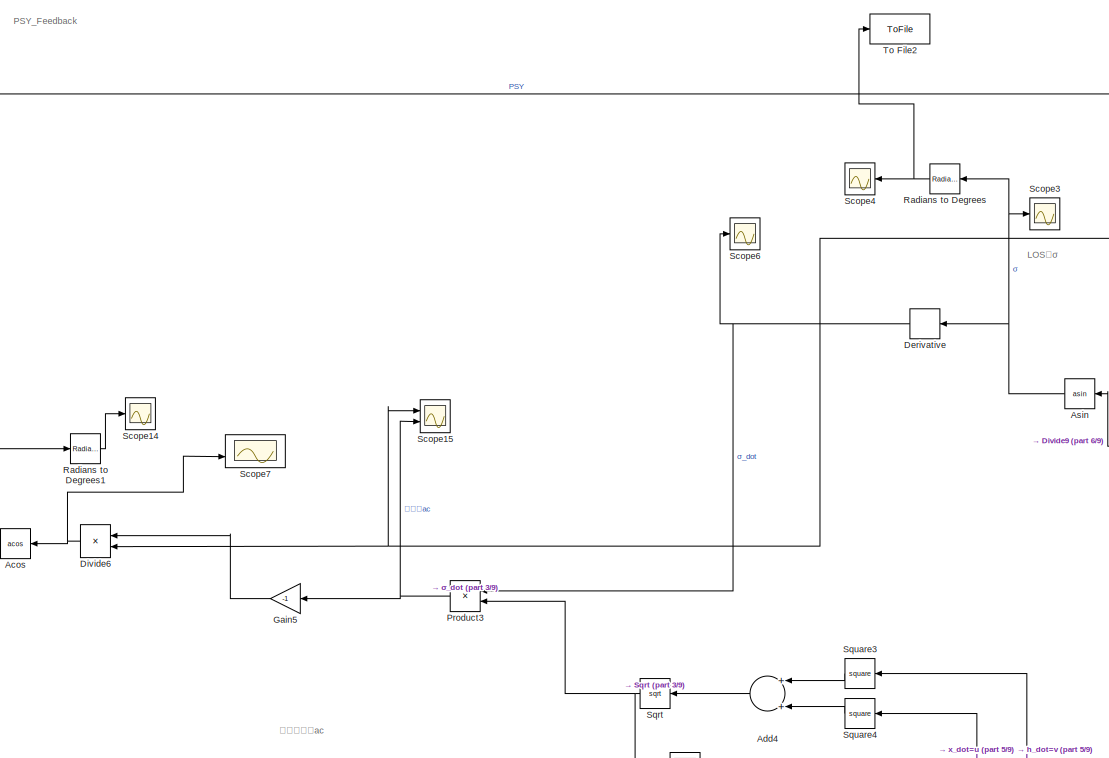
[diagram: root canvas - part 1/9, top left region]
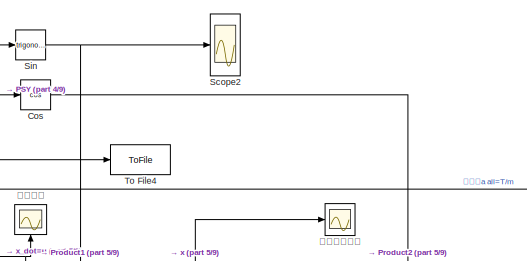
[diagram: root canvas - part 2/9, top center region]
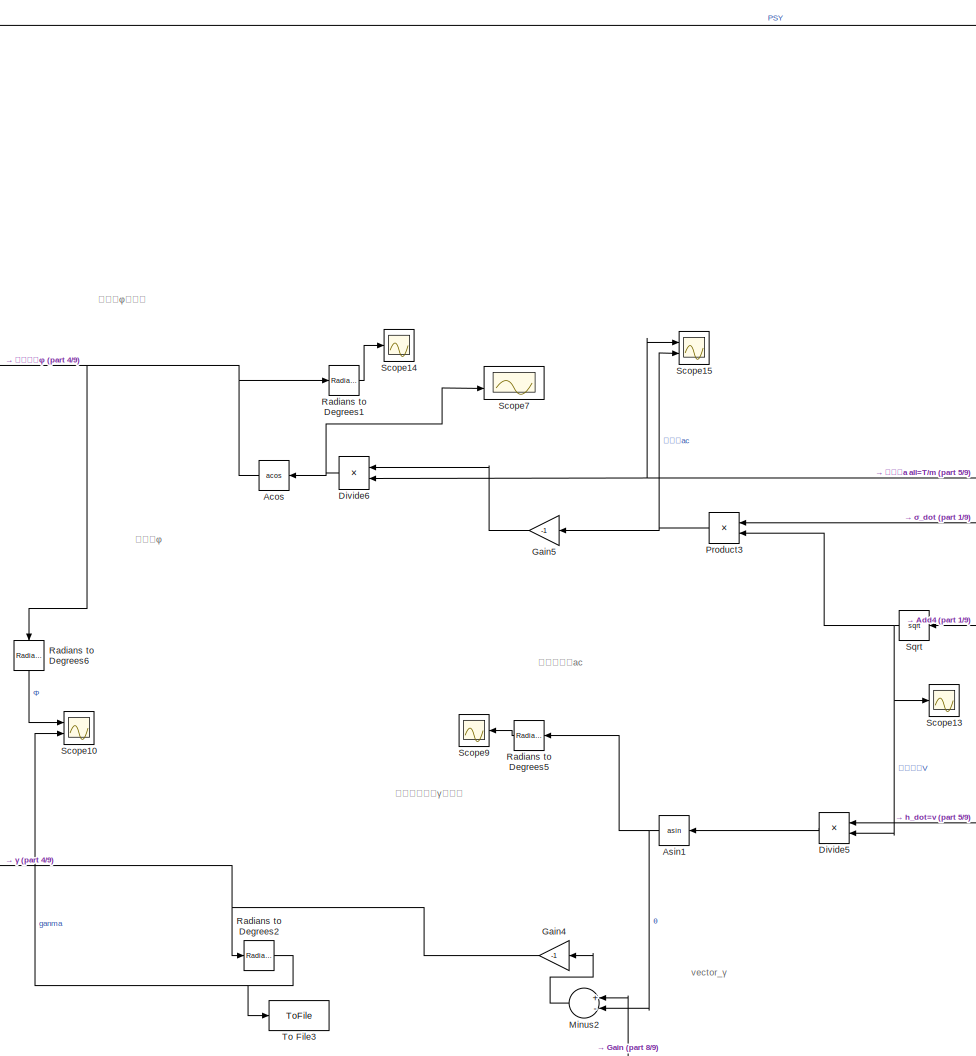
[diagram: root canvas - part 3/9, left side, full height]
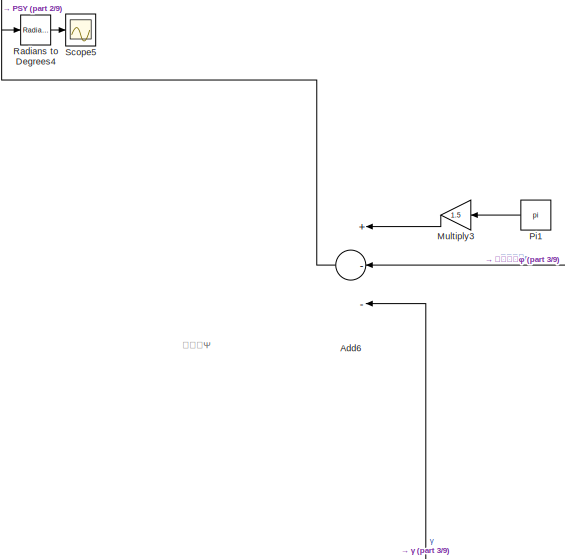
[diagram: root canvas - part 4/9, top left region]
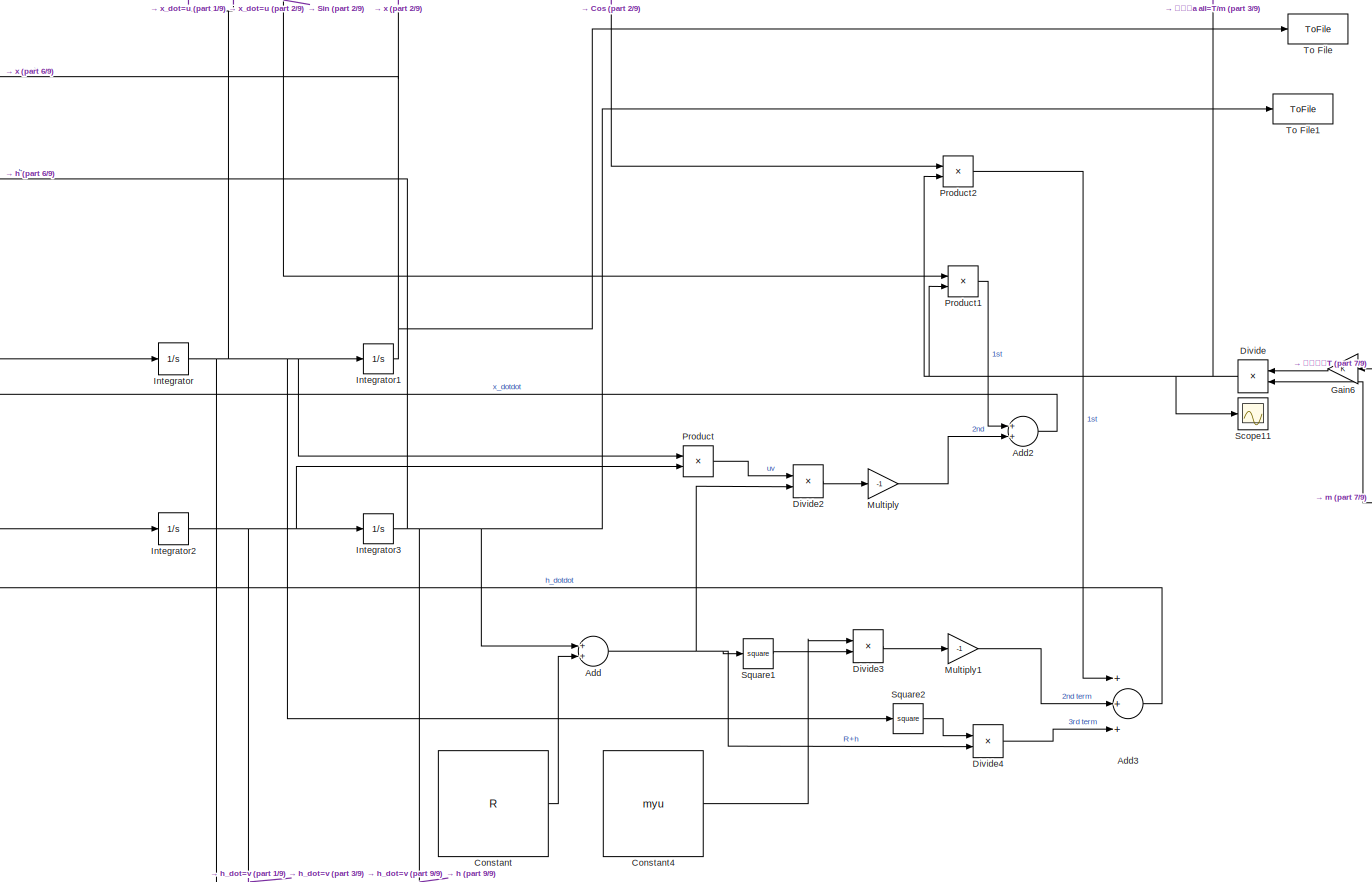
[diagram: root canvas - part 5/9, middle right region]
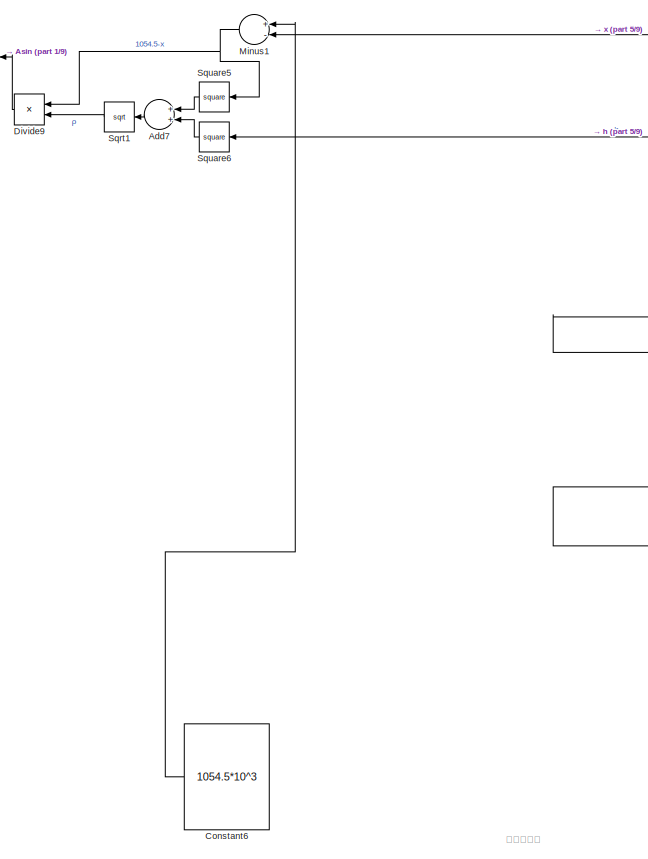
[diagram: root canvas - part 6/9, central region]
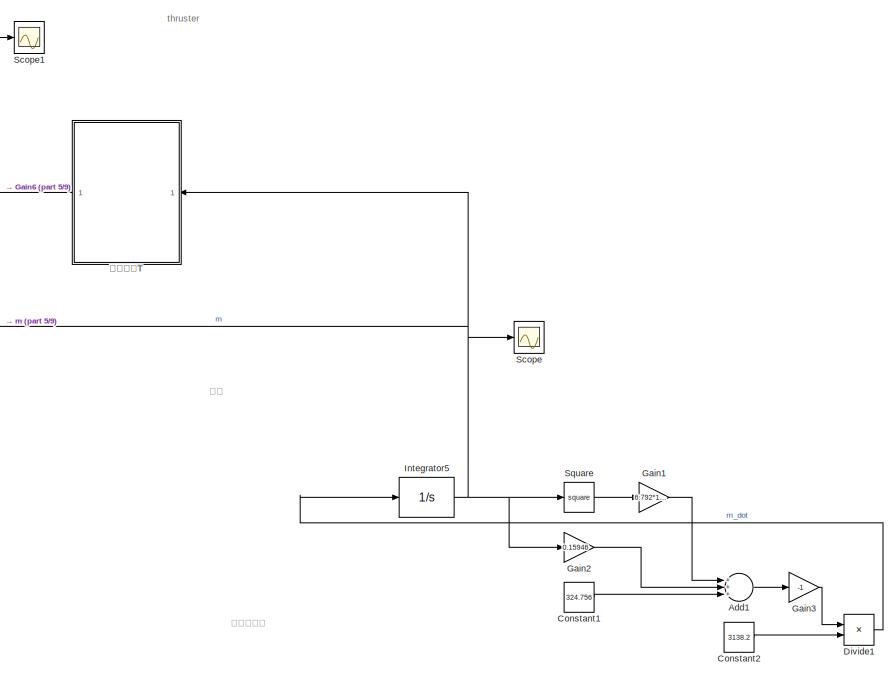
[diagram: root canvas - part 7/9, middle right region]
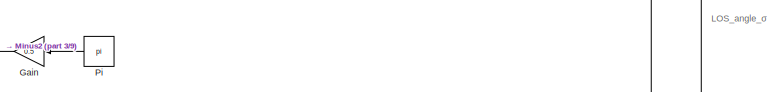
[diagram: root canvas - part 8/9, bottom left region]
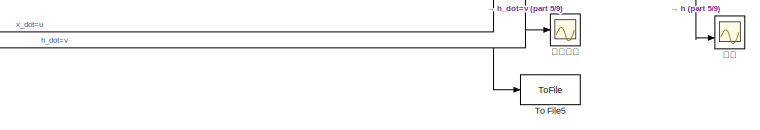
[diagram: root canvas - part 9/9, bottom center region]
MODEL slx_667189627e14
KIND model
CONFIG AbsTol = auto
CONFIG EnableMultiTasking = off
CONFIG FixedStep = auto
CONFIG MaxStep = auto
CONFIG MinStep = auto
CONFIG RelTol = 1e-3
CONFIG SampleTimeConstraint = Unconstrained
CONFIG Solver = VariableStepAuto
CONFIG SolverName = VariableStepAuto
CONFIG StartTime = 0.0
CONFIG StopTime = 150
WORKSPACE source: mxarray member
WORKSPACE R = 1738000
WORKSPACE myu = 4903000000000
BLOCK [Trigonometry] Acos
  Operator = acos
  Ports = [1, 1]
BLOCK [Sum] Add
  InputSameDT = off
  OutDataTypeStr = Inherit: Inherit via internal rule
  Ports = [2, 1]
  SaturateOnIntegerOverflow = off
BLOCK [Sum] Add1
  InputSameDT = off
  Inputs = +++
  OutDataTypeStr = Inherit: Inherit via internal rule
  Ports = [3, 1]
  SaturateOnIntegerOverflow = off
BLOCK [Sum] Add2
  InputSameDT = off
  OutDataTypeStr = Inherit: Inherit via internal rule
  Ports = [2, 1]
  SaturateOnIntegerOverflow = off
BLOCK [Sum] Add3
  InputSameDT = off
  Inputs = +++
  OutDataTypeStr = Inherit: Inherit via internal rule
  Ports = [3, 1]
  SaturateOnIntegerOverflow = off
BLOCK [Sum] Add4
  InputSameDT = off
  OutDataTypeStr = Inherit: Inherit via internal rule
  Ports = [2, 1]
  SaturateOnIntegerOverflow = off
BLOCK [Sum] Add6
  InputSameDT = off
  Inputs = +--
  OutDataTypeStr = Inherit: Inherit via internal rule
  Ports = [3, 1]
  SaturateOnIntegerOverflow = off
BLOCK [Sum] Add7
  InputSameDT = off
  OutDataTypeStr = Inherit: Inherit via internal rule
  Ports = [2, 1]
  SaturateOnIntegerOverflow = off
BLOCK [Trigonometry] Asin
  Operator = asin
  Ports = [1, 1]
BLOCK [Trigonometry] Asin1
  Operator = asin
  Ports = [1, 1]
BLOCK [Constant] Constant
  Value = R
BLOCK [Constant] Constant1
  Value = 324.756
BLOCK [Constant] Constant2
  Value = 3138.2
BLOCK [Constant] Constant4
  Value = myu
BLOCK [Constant] Constant6
  Value = 1054.5*10^3
BLOCK [Trigonometry] Cos
  Operator = cos
  Ports = [1, 1]
BLOCK [Derivative] Derivative
  CoefficientInTFapproximation = 1
BLOCK [Product] Divide
  InputSameDT = off
  Inputs = */
  OutDataTypeStr = Inherit: Inherit via internal rule
  Ports = [2, 1]
BLOCK [Product] Divide1
  InputSameDT = off
  Inputs = */
  OutDataTypeStr = Inherit: Inherit via internal rule
  Ports = [2, 1]
  RndMeth = Floor
  SaturateOnIntegerOverflow = off
BLOCK [Product] Divide2
  InputSameDT = off
  Inputs = */
  OutDataTypeStr = Inherit: Inherit via internal rule
  Ports = [2, 1]
BLOCK [Product] Divide3
  InputSameDT = off
  Inputs = */
  OutDataTypeStr = Inherit: Inherit via internal rule
  Ports = [2, 1]
BLOCK [Product] Divide4
  InputSameDT = off
  Inputs = */
  OutDataTypeStr = Inherit: Inherit via internal rule
  Ports = [2, 1]
BLOCK [Product] Divide5
  InputSameDT = off
  Inputs = */
  OutDataTypeStr = Inherit: Inherit via internal rule
  Ports = [2, 1]
  RndMeth = Floor
  SaturateOnIntegerOverflow = off
BLOCK [Product] Divide6
  InputSameDT = off
  Inputs = */
  OutDataTypeStr = Inherit: Inherit via internal rule
  Ports = [2, 1]
BLOCK [Product] Divide9
  InputSameDT = off
  Inputs = */
  OutDataTypeStr = Inherit: Inherit via internal rule
  Ports = [2, 1]
  RndMeth = Floor
  SaturateOnIntegerOverflow = off
BLOCK [Gain] Gain
  Gain = 0.5
  OutDataTypeStr = Inherit: Inherit via internal rule
  ParamDataTypeStr = Inherit: Inherit via internal rule
  SaturateOnIntegerOverflow = off
BLOCK [Gain] Gain1
  Gain = 6.792*10^-4
  OutDataTypeStr = Inherit: Inherit via internal rule
  ParamDataTypeStr = Inherit: Inherit via internal rule
  SaturateOnIntegerOverflow = off
BLOCK [Gain] Gain2
  Gain = 0.15946
  OutDataTypeStr = Inherit: Inherit via internal rule
  ParamDataTypeStr = Inherit: Inherit via internal rule
  SaturateOnIntegerOverflow = off
BLOCK [Gain] Gain3
  Gain = -1
  OutDataTypeStr = Inherit: Inherit via internal rule
  ParamDataTypeStr = Inherit: Inherit via internal rule
  SaturateOnIntegerOverflow = off
BLOCK [Gain] Gain4
  Gain = -1
  OutDataTypeStr = Inherit: Inherit via internal rule
  ParamDataTypeStr = Inherit: Inherit via internal rule
  SaturateOnIntegerOverflow = off
BLOCK [Gain] Gain5
  Gain = -1
  OutDataTypeStr = Inherit: Inherit via internal rule
  ParamDataTypeStr = Inherit: Inherit via internal rule
  SaturateOnIntegerOverflow = off
BLOCK [Gain] Gain6
  OutDataTypeStr = Inherit: Inherit via internal rule
  ParamDataTypeStr = Inherit: Inherit via internal rule
  SaturateOnIntegerOverflow = off
BLOCK [Integrator] Integrator
  InitialCondition = 170
  Ports = [1, 1]
BLOCK [Integrator] Integrator1
  InitialCondition = 1040.7*10^3
  Ports = [1, 1]
BLOCK [Integrator] Integrator2
  InitialCondition = 3
  Ports = [1, 1]
BLOCK [Integrator] Integrator3
  InitialCondition = 0.5*10^3
  Ports = [1, 1]
BLOCK [Integrator] Integrator5
  InitialCondition = 165.33
  Ports = [1, 1]
BLOCK [Sum] Minus1
  InputSameDT = off
  Inputs = +-
  OutDataTypeStr = Inherit: Inherit via internal rule
  Ports = [2, 1]
  SaturateOnIntegerOverflow = off
BLOCK [Sum] Minus2
  InputSameDT = off
  Inputs = +-
  OutDataTypeStr = Inherit: Inherit via internal rule
  Ports = [2, 1]
  SaturateOnIntegerOverflow = off
BLOCK [Gain] Multiply
  Gain = -1
  OutDataTypeStr = Inherit: Inherit via internal rule
  ParamDataTypeStr = Inherit: Inherit via internal rule
  SaturateOnIntegerOverflow = off
BLOCK [Gain] Multiply1
  Gain = -1
  OutDataTypeStr = Inherit: Inherit via internal rule
  ParamDataTypeStr = Inherit: Inherit via internal rule
  SaturateOnIntegerOverflow = off
BLOCK [Gain] Multiply3
  Gain = 1.5
  OutDataTypeStr = Inherit: Inherit via internal rule
  ParamDataTypeStr = Inherit: Inherit via internal rule
  SaturateOnIntegerOverflow = off
BLOCK [Constant] Pi
  OutDataTypeStr = Inherit: Inherit via back propagation
  Value = pi
BLOCK [Constant] Pi1
  OutDataTypeStr = Inherit: Inherit via back propagation
  Value = pi
BLOCK [Product] Product
  InputSameDT = off
  OutDataTypeStr = Inherit: Inherit via internal rule
  Ports = [2, 1]
  RndMeth = Floor
  SaturateOnIntegerOverflow = off
BLOCK [Product] Product1
  InputSameDT = off
  OutDataTypeStr = Inherit: Inherit via internal rule
  Ports = [2, 1]
  RndMeth = Floor
  SaturateOnIntegerOverflow = off
BLOCK [Product] Product2
  InputSameDT = off
  OutDataTypeStr = Inherit: Inherit via internal rule
  Ports = [2, 1]
  RndMeth = Floor
  SaturateOnIntegerOverflow = off
BLOCK [Product] Product3
  InputSameDT = off
  OutDataTypeStr = Inherit: Inherit via internal rule
  Ports = [2, 1]
  RndMeth = Floor
  SaturateOnIntegerOverflow = off
BLOCK [Reference] Radians to Degrees  REF=simulink_extras/Transformations/Radians
to Degrees
  Ports = [1, 1]
  SourceBlock = simulink_extras/Transformations/Radians\nto Degrees
  SourceProductBaseCode = SL
  SourceProductName = Simulink
  SourceType = RadiansToDegrees
BLOCK [Reference] Radians to Degrees1  REF=simulink_extras/Transformations/Radians
to Degrees
  Ports = [1, 1]
  SourceBlock = simulink_extras/Transformations/Radians\nto Degrees
  SourceProductBaseCode = SL
  SourceProductName = Simulink
  SourceType = RadiansToDegrees
BLOCK [Reference] Radians to Degrees2  REF=simulink_extras/Transformations/Radians
to Degrees
  Ports = [1, 1]
  SourceBlock = simulink_extras/Transformations/Radians\nto Degrees
  SourceProductBaseCode = SL
  SourceProductName = Simulink
  SourceType = RadiansToDegrees
BLOCK [Reference] Radians to Degrees4  REF=simulink_extras/Transformations/Radians
to Degrees
  Ports = [1, 1]
  SourceBlock = simulink_extras/Transformations/Radians\nto Degrees
  SourceProductBaseCode = SL
  SourceProductName = Simulink
  SourceType = RadiansToDegrees
BLOCK [Reference] Radians to Degrees5  REF=simulink_extras/Transformations/Radians
to Degrees
  Ports = [1, 1]
  SourceBlock = simulink_extras/Transformations/Radians\nto Degrees
  SourceProductBaseCode = SL
  SourceProductName = Simulink
  SourceType = RadiansToDegrees
BLOCK [Reference] Radians to Degrees6  REF=simulink_extras/Transformations/Radians
to Degrees
  Ports = [1, 1]
  SourceBlock = simulink_extras/Transformations/Radians\nto Degrees
  SourceProductBaseCode = SL
  SourceProductName = Simulink
  SourceType = RadiansToDegrees
BLOCK [Scope] Scope
  Floating = off
  NumInputPorts = 1
  Ports = [1]
  ScopeSpecificationString = Simulink.scopes.TimeScopeBlockCfg('CurrentConfiguration', extmgr.ConfigurationSet(extmgr.Configuration('Core','General UI',true),extmgr.Configuration('Core','Source UI',true),extmgr.Configuration('Sources','WiredSimulink',true,'DataLoggingVariableName','ScopeData6'),extmgr.Configuration('Visuals','Time Domain',true,'SerializedDisplays',{struct('MinYLimReal','145.6286','MaxYLimReal','167.51904','YL...<+1397ch>
BLOCK [Scope] Scope1
  Floating = off
  NumInputPorts = 1
  Ports = [1]
  ScopeSpecificationString = Simulink.scopes.TimeScopeBlockCfg('CurrentConfiguration', extmgr.ConfigurationSet(extmgr.Configuration('Core','General UI',true),extmgr.Configuration('Core','Source UI',true),extmgr.Configuration('Sources','WiredSimulink',true,'DataLoggingVariableName','ScopeData7'),extmgr.Configuration('Visuals','Time Domain',true,'SerializedDisplays',{struct('MinYLimReal','362.36391','MaxYLimReal','370.514','YLa...<+1370ch>
BLOCK [Scope] Scope10
  Floating = off
  NumInputPorts = 2
  Ports = [2]
  ScopeSpecificationString = Simulink.scopes.TimeScopeBlockCfg('CurrentConfiguration', extmgr.ConfigurationSet(extmgr.Configuration('Core','General UI',true),extmgr.Configuration('Core','Source UI',true),extmgr.Configuration('Sources','WiredSimulink',true,'DataLoggingVariableName','ScopeData8'),extmgr.Configuration('Visuals','Time Domain',true,'SerializedDisplays',{struct('MinYLimReal','-193.58919','MaxYLimReal','221.50991','...<+1409ch>
BLOCK [Scope] Scope11
  Floating = off
  NumInputPorts = 1
  Ports = [1]
  ScopeSpecificationString = Simulink.scopes.TimeScopeBlockCfg('CurrentConfiguration', extmgr.ConfigurationSet(extmgr.Configuration('Core','General UI',true),extmgr.Configuration('Core','Source UI',true),extmgr.Configuration('Sources','WiredSimulink',true,'DataLoggingVariableName','ScopeData9'),extmgr.Configuration('Visuals','Time Domain',true,'SerializedDisplays',{struct('MinYLimReal','2.20853','MaxYLimReal','2.48454','YLabe...<+1396ch>
BLOCK [Scope] Scope13
  Floating = off
  NumInputPorts = 1
  Ports = [1]
  ScopeSpecificationString = Simulink.scopes.TimeScopeBlockCfg('CurrentConfiguration', extmgr.ConfigurationSet(extmgr.Configuration('Core','General UI',true),extmgr.Configuration('Core','Source UI',true),extmgr.Configuration('Sources','WiredSimulink',true,'DataLoggingVariableName','ScopeData1'),extmgr.Configuration('Visuals','Time Domain',true,'SerializedDisplays',{struct('MinYLimReal','-20.48335','MaxYLimReal','191.19423','Y...<+1404ch>
BLOCK [Scope] Scope14
  Floating = off
  NumInputPorts = 1
  Ports = [1]
  ScopeSpecificationString = Simulink.scopes.TimeScopeBlockCfg('CurrentConfiguration', extmgr.ConfigurationSet(extmgr.Configuration('Core','General UI',true),extmgr.Configuration('Core','Source UI',true),extmgr.Configuration('Sources','WiredSimulink',true,'DataLoggingVariableName','ScopeData14'),extmgr.Configuration('Visuals','Time Domain',true,'SerializedDisplays',{struct('MinYLimReal','-0.22869','MaxYLimReal','200.02541','Y...<+1387ch>
BLOCK [Scope] Scope15
  Floating = off
  NumInputPorts = 2
  Ports = [2]
  ScopeSpecificationString = Simulink.scopes.TimeScopeBlockCfg('CurrentConfiguration', extmgr.ConfigurationSet(extmgr.Configuration('Core','General UI',true),extmgr.Configuration('Core','Source UI',true),extmgr.Configuration('Sources','WiredSimulink',true,'DataLoggingVariableName','ScopeData3'),extmgr.Configuration('Visuals','Time Domain',true,'SerializedDisplays',{struct('MinYLimReal','-6.72233','MaxYLimReal','3.47686','YLab...<+1404ch>
BLOCK [Scope] Scope2
  Floating = off
  NumInputPorts = 1
  Ports = [1]
  ScopeSpecificationString = Simulink.scopes.TimeScopeBlockCfg('CurrentConfiguration', extmgr.ConfigurationSet(extmgr.Configuration('Core','General UI',true),extmgr.Configuration('Core','Source UI',true),extmgr.Configuration('Sources','WiredSimulink',true,'DataLoggingVariableName','ScopeData11'),extmgr.Configuration('Visuals','Time Domain',true,'SerializedDisplays',{struct('MinYLimReal','-1.16379','MaxYLimReal','0.6767','YLab...<+1396ch>
BLOCK [Scope] Scope3
  Floating = off
  NumInputPorts = 1
  Ports = [1]
  ScopeSpecificationString = Simulink.scopes.TimeScopeBlockCfg('CurrentConfiguration', extmgr.ConfigurationSet(extmgr.Configuration('Core','General UI',true),extmgr.Configuration('Core','Source UI',true),extmgr.Configuration('Sources','WiredSimulink',true,'DataLoggingVariableName','ScopeData12'),extmgr.Configuration('Visuals','Time Domain',true,'SerializedDisplays',{struct('MinYLimReal','0.5717','MaxYLimReal','1.66933','YLabe...<+1355ch>
BLOCK [Scope] Scope4
  Floating = off
  NumInputPorts = 1
  Ports = [1]
  ScopeSpecificationString = Simulink.scopes.TimeScopeBlockCfg('CurrentConfiguration', extmgr.ConfigurationSet(extmgr.Configuration('Core','General UI',true),extmgr.Configuration('Core','Source UI',true),extmgr.Configuration('Sources','WiredSimulink',true,'DataLoggingVariableName','ScopeData13'),extmgr.Configuration('Visuals','Time Domain',true,'SerializedDisplays',{struct('MinYLimReal','59.88675','MaxYLimReal','93.13713','YL...<+1414ch>
BLOCK [Scope] Scope5
  Floating = off
  NumInputPorts = 1
  Ports = [1]
  ScopeSpecificationString = Simulink.scopes.TimeScopeBlockCfg('CurrentConfiguration', extmgr.ConfigurationSet(extmgr.Configuration('Core','General UI',true),extmgr.Configuration('Core','Source UI',true),extmgr.Configuration('Sources','WiredSimulink',true,'DataLoggingVariableName','ScopeData2'),extmgr.Configuration('Visuals','Time Domain',true,'SerializedDisplays',{struct('MinYLimReal','257.68686','MaxYLimReal','370.7083','YL...<+1388ch>
BLOCK [Scope] Scope6
  Floating = off
  NumInputPorts = 1
  Ports = [1]
  ScopeSpecificationString = Simulink.scopes.TimeScopeBlockCfg('CurrentConfiguration', extmgr.ConfigurationSet(extmgr.Configuration('Core','General UI',true),extmgr.Configuration('Core','Source UI',true),extmgr.Configuration('Sources','WiredSimulink',true,'DataLoggingVariableName','ScopeData15'),extmgr.Configuration('Visuals','Time Domain',true,'SerializedDisplays',{struct('MinYLimReal','-0.07496','MaxYLimReal','0.04038','YLa...<+1427ch>
BLOCK [Scope] Scope7
  Floating = off
  NumInputPorts = 2
  Ports = [2]
  ScopeSpecificationString = Simulink.scopes.TimeScopeBlockCfg('CurrentConfiguration', extmgr.ConfigurationSet(extmgr.Configuration('Core','General UI',true),extmgr.Configuration('Core','Source UI',true),extmgr.Configuration('Sources','WiredSimulink',true,'DataLoggingVariableName','ScopeData16'),extmgr.Configuration('Visuals','Time Domain',true,'SerializedDisplays',{struct('MinYLimReal','-2.72867','MaxYLimReal','1.34863','YLa...<+1406ch>
BLOCK [Scope] Scope9
  Floating = off
  NumInputPorts = 1
  Ports = [1]
  ScopeSpecificationString = Simulink.scopes.TimeScopeBlockCfg('CurrentConfiguration', extmgr.ConfigurationSet(extmgr.Configuration('Core','General UI',true),extmgr.Configuration('Core','Source UI',true),extmgr.Configuration('Sources','WiredSimulink',true,'DataLoggingVariableName','ScopeData5'),extmgr.Configuration('Visuals','Time Domain',true,'SerializedDisplays',{struct('MinYLimReal','-66.40446','MaxYLimReal','-23.15263','Y...<+1386ch>
BLOCK [Trigonometry] Sin
  Ports = [1, 1]
BLOCK [Sqrt] Sqrt
BLOCK [Sqrt] Sqrt1
BLOCK [Math] Square
  Operator = square
  Ports = [1, 1]
BLOCK [Math] Square1
  Operator = square
  Ports = [1, 1]
BLOCK [Math] Square2
  Operator = square
  Ports = [1, 1]
BLOCK [Math] Square3
  Operator = square
  Ports = [1, 1]
BLOCK [Math] Square4
  Operator = square
  Ports = [1, 1]
BLOCK [Math] Square5
  Operator = square
  Ports = [1, 1]
  SignedPower = off
BLOCK [Math] Square6
  Operator = square
  Ports = [1, 1]
  SignedPower = off
BLOCK [ToFile] To File
  Filename = x.mat
  Ports = [1]
  SaveFormat = Timeseries
BLOCK [ToFile] To File1
  Filename = h.mat
  Ports = [1]
  SaveFormat = Timeseries
BLOCK [ToFile] To File2
  Filename = sigma.mat
  Ports = [1]
  SaveFormat = Timeseries
BLOCK [ToFile] To File3
  Filename = ganma.mat
  Ports = [1]
  SaveFormat = Timeseries
BLOCK [ToFile] To File4
  Filename = verticalvelocity.mat
  Ports = [1]
  SaveFormat = Timeseries
BLOCK [ToFile] To File5
  Filename = enchokuvelo.mat
  Ports = [1]
  SaveFormat = Timeseries
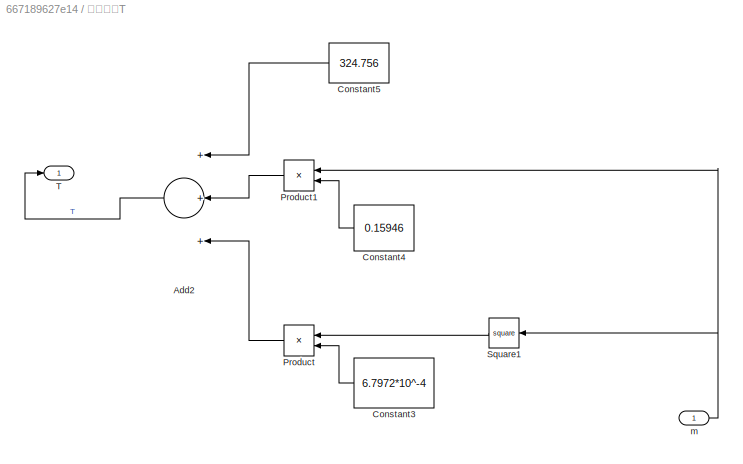
BLOCK [SubSystem] スラスタT
  Ports = [1, 1]
  RequestExecContextInheritance = off
BLOCK [Sum] スラスタT/Add2
  InputSameDT = off
  Inputs = +++
  OutDataTypeStr = Inherit: Inherit via internal rule
  Ports = [3, 1]
  SaturateOnIntegerOverflow = off
BLOCK [Constant] スラスタT/Constant3
  Value = 6.7972*10^-4
BLOCK [Constant] スラスタT/Constant4
  Value = 0.15946
BLOCK [Constant] スラスタT/Constant5
  Value = 324.756
BLOCK [Product] スラスタT/Product
  InputSameDT = off
  OutDataTypeStr = Inherit: Inherit via internal rule
  Ports = [2, 1]
  RndMeth = Floor
  SaturateOnIntegerOverflow = off
BLOCK [Product] スラスタT/Product1
  InputSameDT = off
  OutDataTypeStr = Inherit: Inherit via internal rule
  Ports = [2, 1]
  RndMeth = Floor
  SaturateOnIntegerOverflow = off
BLOCK [Math] スラスタT/Square1
  Operator = square
  Ports = [1, 1]
BLOCK [Outport] スラスタT/T
  IconDisplay = Port number
  VectorParamsAs1DForOutWhenUnconnected = off
BLOCK [Inport] スラスタT/m
  IconDisplay = Port number
BLOCK [Scope] ダウンレンジ
  Floating = off
  NumInputPorts = 1
  Ports = [1]
  ScopeSpecificationString = Simulink.scopes.TimeScopeBlockCfg('CurrentConfiguration', extmgr.ConfigurationSet(extmgr.Configuration('Core','General UI',true),extmgr.Configuration('Core','Source UI',true),extmgr.Configuration('Sources','WiredSimulink',true,'DataLoggingVariableName','ScopeData18'),extmgr.Configuration('Visuals','Time Domain',true,'SerializedDisplays',{struct('MinYLimReal','1039760.16301','MaxYLimReal','1049158....<+1436ch>
BLOCK [Scope] 水平速度
  Floating = off
  NumInputPorts = 1
  Ports = [1]
  ScopeSpecificationString = Simulink.scopes.TimeScopeBlockCfg('CurrentConfiguration', extmgr.ConfigurationSet(extmgr.Configuration('Core','General UI',true),extmgr.Configuration('Core','Source UI',true),extmgr.Configuration('Sources','WiredSimulink',true,'DataLoggingVariableName','ScopeData19'),extmgr.Configuration('Visuals','Time Domain',true,'SerializedDisplays',{struct('MinYLimReal','-147.18681','MaxYLimReal','223.63187',...<+1400ch>
BLOCK [Scope] 鉛直速度
  Floating = off
  NumInputPorts = 1
  Ports = [1]
  ScopeSpecificationString = Simulink.scopes.TimeScopeBlockCfg('CurrentConfiguration', extmgr.ConfigurationSet(extmgr.Configuration('Core','General UI',true),extmgr.Configuration('Core','Source UI',true),extmgr.Configuration('Sources','WiredSimulink',true,'DataLoggingVariableName','ScopeData20'),extmgr.Configuration('Visuals','Time Domain',true,'SerializedDisplays',{struct('MinYLimReal','-48.72889','MaxYLimReal','8.74765','YL...<+1371ch>
BLOCK [Scope] 高度
  Floating = off
  NumInputPorts = 2
  Ports = [2]
  ScopeSpecificationString = Simulink.scopes.TimeScopeBlockCfg('CurrentConfiguration', extmgr.ConfigurationSet(extmgr.Configuration('Core','General UI',true),extmgr.Configuration('Core','Source UI',true),extmgr.Configuration('Sources','WiredSimulink',true),extmgr.Configuration('Visuals','Time Domain',true,'SerializedDisplays',{struct('MinYLimReal','-3772.09625','MaxYLimReal','977.20747','YLabelReal','','MinYLimMag','  0.00000...<+1377ch>
ANNOTATION (root): LOS_angle_σ
ANNOTATION (root): PSY_Feedback
ANNOTATION (root): thruster
ANNOTATION (root): 姿勢角Ψ
ANNOTATION (root): 指令加速度ac
ANNOTATION (root): 推力角φ
ANNOTATION (root): vector_ γ
ANNOTATION (root): 燃料モデル
ANNOTATION (root): 運動モデル
ANNOTATION (root): LOS角σ
ANNOTATION (root): 推力角φの導出
ANNOTATION (root): 燃料
ANNOTATION (root): 速度ベクトルγの導出
NET Acos:1 -> Add6:2, Radians to Degrees1:1, Radians to Degrees6:1
LINE Add1:1 -> Gain3:1
LINE Add2:1 -> Integrator:1
LINE Add3:1 -> Integrator2:1
LINE Add4:1 -> Sqrt:1
NET Add6:1 -> Cos:1, Radians to Degrees4:1, Sin:1
LINE Add7:1 -> Sqrt1:1
NET Add:1 -> Divide2:2, Divide4:2, Square1:1
NET Asin1:1 -> Minus2:2, Radians to Degrees5:1
NET Asin:1 -> Derivative:1, Radians to Degrees:1, Scope3:1
LINE Constant1:1 -> Add1:3
LINE Constant2:1 -> Divide1:2
LINE Constant4:1 -> Divide3:1
LINE Constant6:1 -> Minus1:1
LINE Constant:1 -> Add:2
LINE Cos:1 -> Product2:1
NET Derivative:1 -> Product3:1, Scope6:1
LINE Divide1:1 -> Integrator5:1
LINE Divide2:1 -> Multiply:1
LINE Divide3:1 -> Multiply1:1
LINE Divide4:1 -> Add3:3
LINE Divide5:1 -> Asin1:1
NET Divide6:1 -> Acos:1, Scope7:2
LINE Divide9:1 -> Asin:1
NET Divide:1 -> Divide6:2, Product1:2, Product2:2, Scope11:1, Scope15:1
LINE Gain1:1 -> Add1:1
LINE Gain2:1 -> Add1:2
LINE Gain3:1 -> Divide1:1
NET Gain4:1 -> Add6:3, Radians to Degrees2:1
LINE Gain5:1 -> Divide6:1
LINE Gain6:1 -> Divide:1
LINE Gain:1 -> Minus2:1
NET Integrator1:1 -> Minus1:2, To File:1, ダウンレンジ:1
NET Integrator2:1 -> Divide5:1, Integrator3:1, Product:2, Square3:1, To File5:1, 鉛直速度:1
NET Integrator3:1 -> Add:1, Square6:1, To File1:1, 高度:2
NET Integrator5:1 -> Divide:2, Gain2:1, Scope:1, Square:1, スラスタT:1
NET Integrator:1 -> Integrator1:1, Product:1, Square2:1, Square4:1, To File4:1, 水平速度:1
NET Minus1:1 -> Divide9:1, Square5:1
LINE Minus2:1 -> Gain4:1
LINE Multiply1:1 -> Add3:2
LINE Multiply3:1 -> Add6:1
LINE Multiply:1 -> Add2:2
LINE Pi1:1 -> Multiply3:1
LINE Pi:1 -> Gain:1
LINE Product1:1 -> Add2:1
LINE Product2:1 -> Add3:1
NET Product3:1 -> Gain5:1, Scope15:2
LINE Product:1 -> Divide2:1
LINE Radians to Degrees1:1 -> Scope14:1
NET Radians to Degrees2:1 -> Scope10:2, To File3:1
LINE Radians to Degrees4:1 -> Scope5:1
LINE Radians to Degrees5:1 -> Scope9:1
LINE Radians to Degrees6:1 -> Scope10:1
NET Radians to Degrees:1 -> Scope4:1, To File2:1
NET Sin:1 -> Product1:1, Scope2:1
LINE Sqrt1:1 -> Divide9:2
NET Sqrt:1 -> Divide5:2, Product3:2, Scope13:1
LINE Square1:1 -> Divide3:2
LINE Square2:1 -> Divide4:1
LINE Square3:1 -> Add4:1
LINE Square4:1 -> Add4:2
LINE Square5:1 -> Add7:1
LINE Square6:1 -> Add7:2
LINE Square:1 -> Gain1:1
LINE スラスタT/Add2:1 -> スラスタT/T:1
LINE スラスタT/Constant3:1 -> スラスタT/Product:2
LINE スラスタT/Constant4:1 -> スラスタT/Product1:2
LINE スラスタT/Constant5:1 -> スラスタT/Add2:1
LINE スラスタT/Product1:1 -> スラスタT/Add2:2
LINE スラスタT/Product:1 -> スラスタT/Add2:3
LINE スラスタT/Square1:1 -> スラスタT/Product:1
NET スラスタT/m:1 -> スラスタT/Product1:1, スラスタT/Square1:1
NET スラスタT:1 -> Gain6:1, Scope1:1
note: NET lines group one-source signal fan-out (src -> all destinations, sorted); 1:1 wires keep LINE
